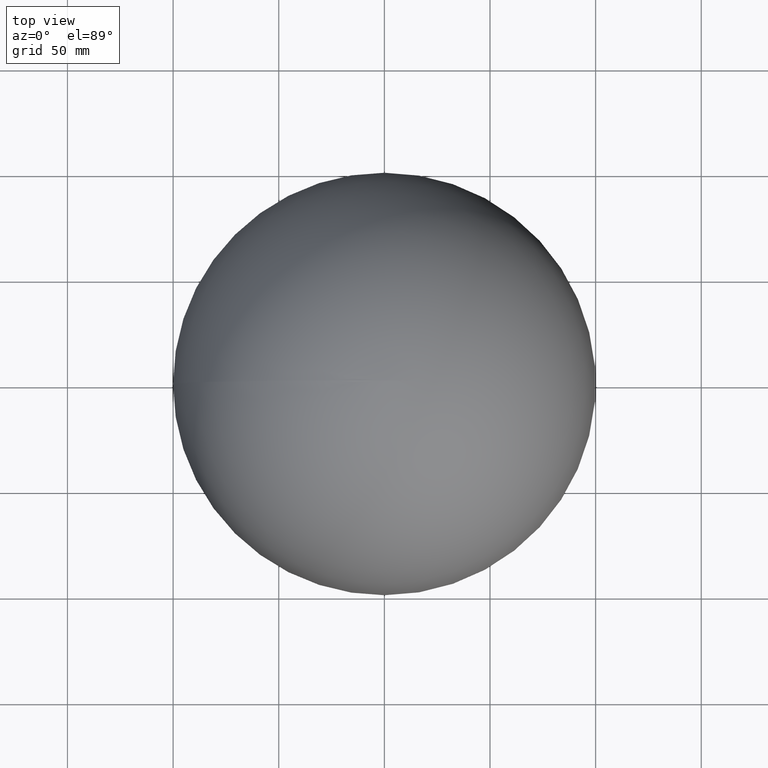
[diagram: clean part render]
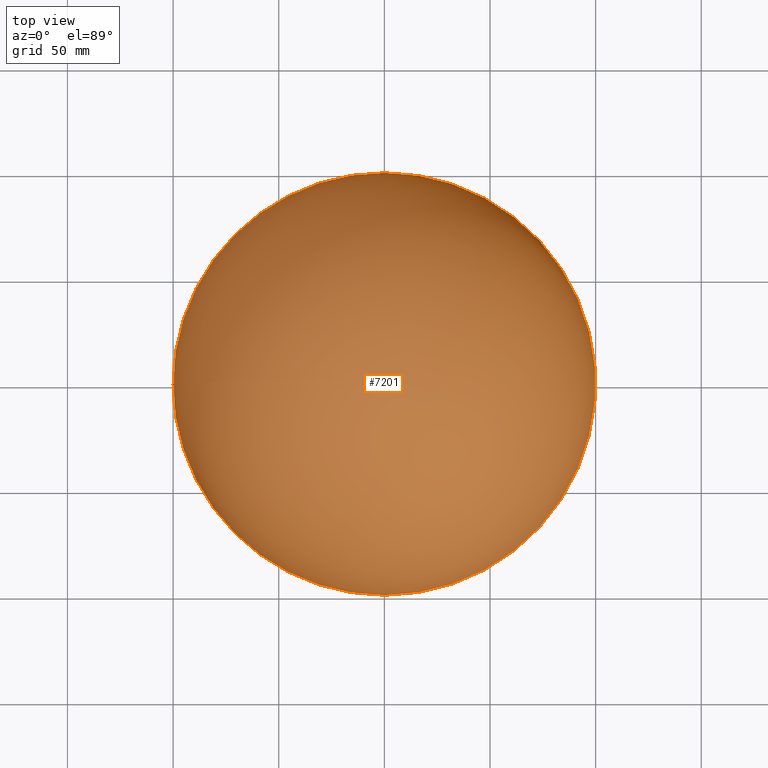
[diagram: same view with one face highlighted and labeled with its STEP entity id]
A machine part, top view. The second image highlights one B-rep face of the part: STEP entity #7201.
In plain terms, the highlighted spherical surface has radius 100 mm.
Its self-contained STEP definition (entity closure, byte-faithful):
#82 = ORIENTED_EDGE ( 'NONE', *, *, #3544, .T. ) ;
#367 = CARTESIAN_POINT ( 'NONE',  ( -1.836970198721026300E-014, -100.0000000000000000, 0.0000000000000000000 ) ) ;
#737 = AXIS2_PLACEMENT_3D ( 'NONE', #3494, #4219, #7115 ) ;
#1106 = CARTESIAN_POINT ( 'NONE',  ( 0.0000000000000000000, 0.0000000000000000000, 0.0000000000000000000 ) ) ;
#1107 = EDGE_CURVE ( 'NONE', #9405, #7726, #9333, .T. ) ;
#1114 = CARTESIAN_POINT ( 'NONE',  ( 0.0000000000000000000, 0.0000000000000000000, 0.0000000000000000000 ) ) ;
#2401 = AXIS2_PLACEMENT_3D ( 'NONE', #1106, #7006, #8386 ) ;
#2526 = CIRCLE ( 'NONE', #2401, 100.0000000000000000 ) ;
#3208 = EDGE_LOOP ( 'NONE', ( #5355, #82 ) ) ;
#3494 = CARTESIAN_POINT ( 'NONE',  ( 0.0000000000000000000, 0.0000000000000000000, 0.0000000000000000000 ) ) ;
#3544 = EDGE_CURVE ( 'NONE', #9405, #7726, #2526, .T. ) ;
#4219 = DIRECTION ( 'NONE',  ( -0.0000000000000000000, 0.0000000000000000000, -1.000000000000000000 ) ) ;
#5355 = ORIENTED_EDGE ( 'NONE', *, *, #1107, .F. ) ;
#5521 = DIRECTION ( 'NONE',  ( -1.000000000000000000, 1.224646799147349500E-016, 0.0000000000000000000 ) ) ;
#6367 = FACE_OUTER_BOUND ( 'NONE', #3208, .T. ) ;
#6470 = CARTESIAN_POINT ( 'NONE',  ( 6.123233995736729000E-015, 100.0000000000000000, 0.0000000000000000000 ) ) ;
#7006 = DIRECTION ( 'NONE',  ( -1.224646799147353200E-016, 1.499759782661853200E-032, 1.000000000000000000 ) ) ;
#7011 = DIRECTION ( 'NONE',  ( 0.0000000000000000000, 0.0000000000000000000, 1.000000000000000000 ) ) ;
#7115 = DIRECTION ( 'NONE',  ( -1.000000000000000000, 0.0000000000000000000, 0.0000000000000000000 ) ) ;
#7201 = ADVANCED_FACE ( 'NONE', ( #6367 ), #7266, .T. ) ;
#7266 = SPHERICAL_SURFACE ( 'NONE', #8787, 100.0000000000000000 ) ;
#7726 = VERTEX_POINT ( 'NONE', #6470 ) ;
#8386 = DIRECTION ( 'NONE',  ( 1.000000000000000000, 0.0000000000000000000, 1.224646799147353200E-016 ) ) ;
#8787 = AXIS2_PLACEMENT_3D ( 'NONE', #1114, #7011, #5521 ) ;
#9333 = CIRCLE ( 'NONE', #737, 100.0000000000000000 ) ;
#9405 = VERTEX_POINT ( 'NONE', #367 ) ;